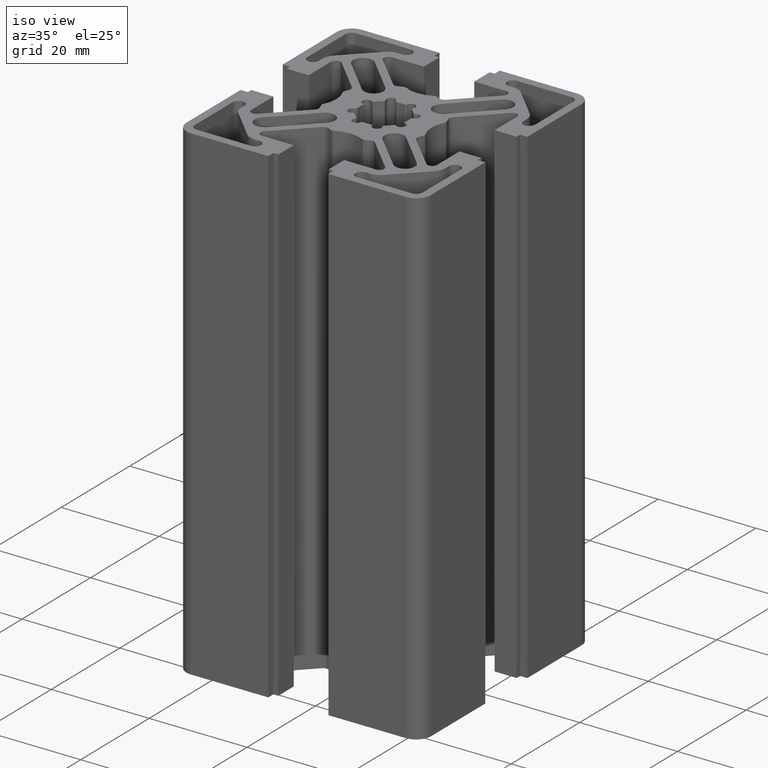
[diagram: clean part render]
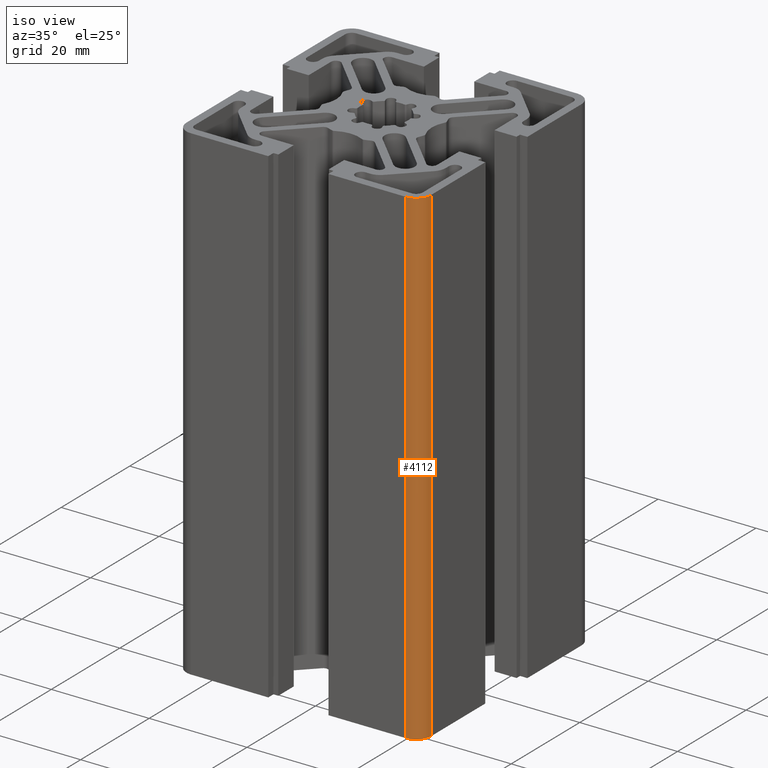
[diagram: same view with one face highlighted and labeled with its STEP entity id]
A machine part, iso view. The second image highlights one B-rep face of the part: STEP entity #4112.
In plain terms, the highlighted cylindrical surface (edge-blend (fillet) strip) has radius 3 mm, axis along (0, 0, 1).
Its self-contained STEP definition (entity closure, byte-faithful):
#254=FACE_OUTER_BOUND('',#464,.T.);
#464=EDGE_LOOP('',(#3129,#3130,#3131,#3132));
#792=LINE('',#6682,#1184);
#793=LINE('',#6688,#1185);
#1184=VECTOR('',#5430,100.);
#1185=VECTOR('',#5437,100.);
#1503=CIRCLE('',#4479,3.);
#1504=CIRCLE('',#4480,3.);
#1835=VERTEX_POINT('',#6678);
#1836=VERTEX_POINT('',#6680);
#1837=VERTEX_POINT('',#6684);
#1838=VERTEX_POINT('',#6686);
#2378=EDGE_CURVE('',#1835,#1836,#792,.T.);
#2379=EDGE_CURVE('',#1837,#1835,#1503,.T.);
#2380=EDGE_CURVE('',#1838,#1836,#1504,.T.);
#2381=EDGE_CURVE('',#1837,#1838,#793,.T.);
#3129=ORIENTED_EDGE('',*,*,#2379,.T.);
#3130=ORIENTED_EDGE('',*,*,#2378,.T.);
#3131=ORIENTED_EDGE('',*,*,#2380,.F.);
#3132=ORIENTED_EDGE('',*,*,#2381,.F.);
#3946=CYLINDRICAL_SURFACE('',#4478,3.);
#4112=ADVANCED_FACE('',(#254),#3946,.T.);
#4478=AXIS2_PLACEMENT_3D('',#6683,#5431,#5432);
#4479=AXIS2_PLACEMENT_3D('',#6685,#5433,#5434);
#4480=AXIS2_PLACEMENT_3D('',#6687,#5435,#5436);
#5430=DIRECTION('',(0.,0.,1.));
#5431=DIRECTION('center_axis',(0.,0.,1.));
#5432=DIRECTION('ref_axis',(0.,-1.,0.));
#5433=DIRECTION('center_axis',(0.,0.,1.));
#5434=DIRECTION('ref_axis',(0.,-1.,0.));
#5435=DIRECTION('center_axis',(0.,0.,1.));
#5436=DIRECTION('ref_axis',(0.,-1.,0.));
#5437=DIRECTION('',(0.,0.,1.));
#6678=CARTESIAN_POINT('',(25.,-22.0000000000117,0.));
#6680=CARTESIAN_POINT('',(25.,-22.0000000000117,100.));
#6682=CARTESIAN_POINT('',(25.,-22.0000000000117,0.));
#6683=CARTESIAN_POINT('Origin',(22.,-22.,0.));
#6684=CARTESIAN_POINT('',(22.,-25.,0.));
#6685=CARTESIAN_POINT('Origin',(22.,-22.,0.));
#6686=CARTESIAN_POINT('',(22.,-25.,100.));
#6687=CARTESIAN_POINT('Origin',(22.,-22.,100.));
#6688=CARTESIAN_POINT('',(22.,-25.,0.));